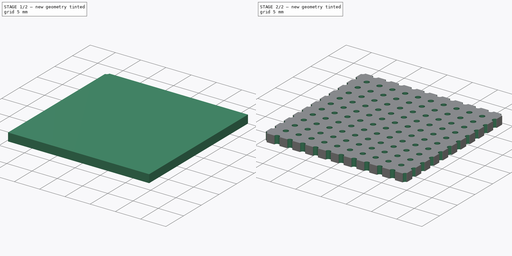
[diagram: build sequence overview — one tinted view per stage of 2, left to right]
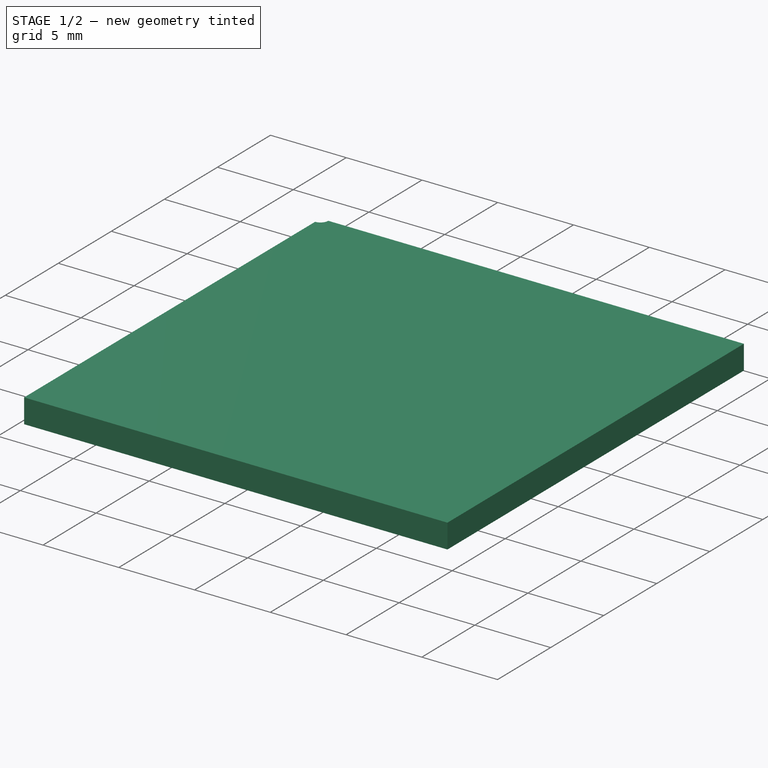
[diagram: stage 1 of 2 — iso view after this stage's code; geometry added in this stage tinted green]
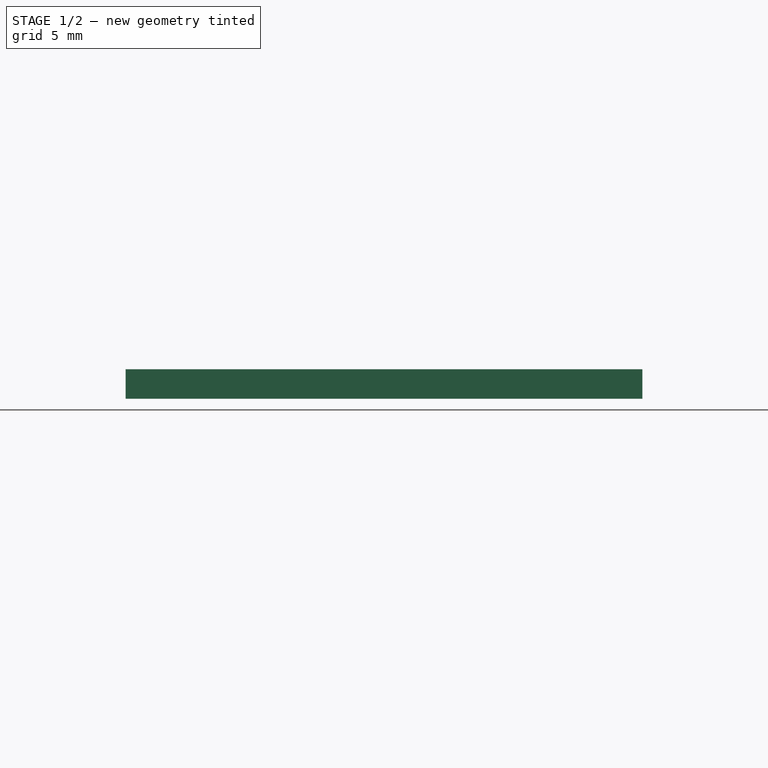
[diagram: stage 1 of 2 — front view after this stage's code; geometry added in this stage tinted green]
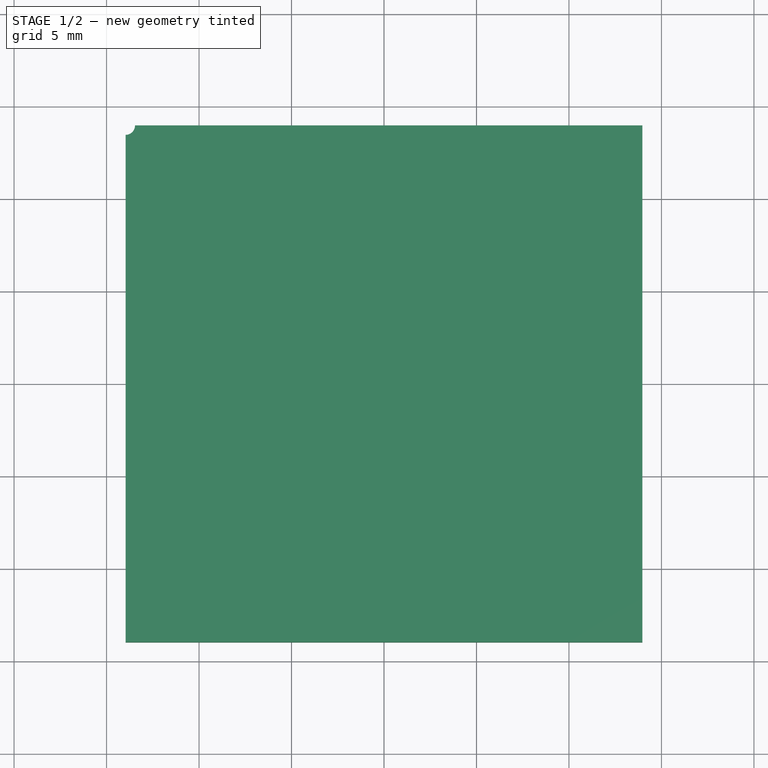
[diagram: stage 1 of 2 — top view after this stage's code; geometry added in this stage tinted green]
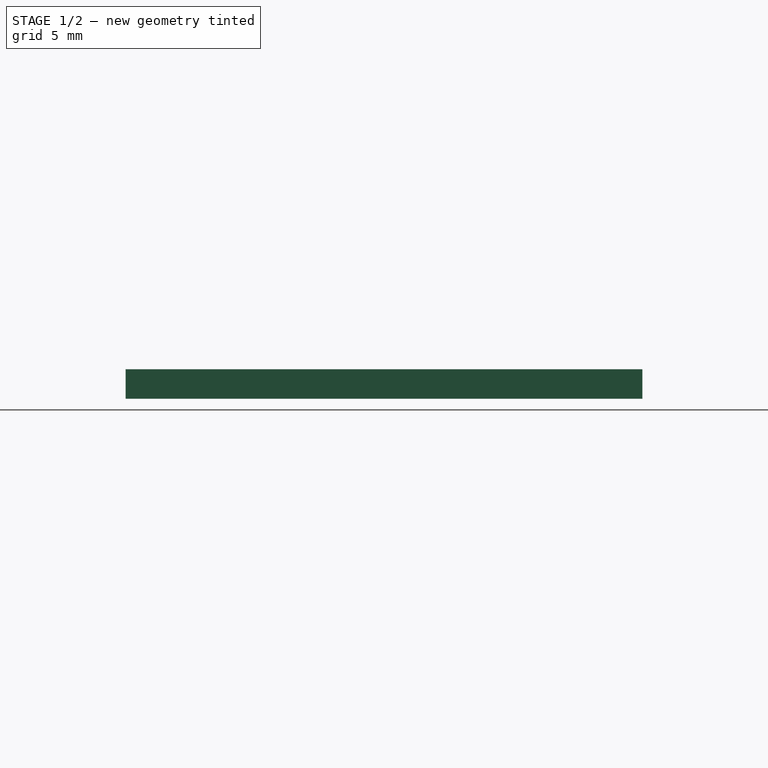
[diagram: stage 1 of 2 — right view after this stage's code; geometry added in this stage tinted green]
FCSTD DOCUMENT  (FreeCAD 0.19R16945 (Git))
Label: Vero Board Generator - Part Board
License: All rights reserved
LicenseURL: http://en.wikipedia.org/wiki/All_rights_reserved
objects: PartDesign::Line×6, Sketcher::SketchObject×2, PartDesign::Body×2, PartDesign::LinearPattern×2, Spreadsheet::Sheet×1, PartDesign::Pad×1, PartDesign::Pocket×1, PartDesign::MultiTransform×1, Part::Compound×1
note: 18 computed .brp shape members not serialized (recipe doc carries the construction recipe); baked Part::Feature solids carry a one-line shape summary decoded from their .brp

FEATURE [Spreadsheet::Sheet] Spreadsheet  label="Data"
  cells = A1=Alias; B1=Value; C1=Description; A2=diameter; B2(diameter)==1.02mm; C2=Hole Diameter; A3=pitch_h; B3(pitch_h)==2.54mm; C3=Hole Pitch Horizontal; A4=pitch_v; B4(pitch_v)==2.54mm; C4=Hole Pitch Vertical; A5=holes_h; B5(holes_h)=10; C5=Hole Number Horizontal; A6=holes_v; B6(holes_v)=10; C6=Hole Number Vertical (Strips); A7=board_thickness; B7(board_thickness)==1.6mm; C7=Board Thickness; A8=cu_thickness; B8(cu_thickness)==35um; C8=Copper Thickness; A9=cu_width; B9(cu_width)==2mm; C9=Copper Track Width
FEATURE [Sketcher::SketchObject] Sketch  label="BoardSketch"
  MapMode = 5
  Support = -> [XY_Plane]
  expr: Constraints[10] = (Data.holes_v + 1) * Data.pitch_v
  expr: Constraints[9] = (Data.holes_h + 1) * Data.pitch_h
  sketch-geometry (4):
    g0: LineSegment StartX=-13.97 StartY=13.97 StartZ=0 EndX=13.97 EndY=13.97 EndZ=0
    g1: LineSegment StartX=13.97 StartY=13.97 StartZ=0 EndX=13.97 EndY=-13.97 EndZ=0
    g2: LineSegment StartX=13.97 StartY=-13.97 StartZ=0 EndX=-13.97 EndY=-13.97 EndZ=0
    g3: LineSegment StartX=-13.97 StartY=-13.97 StartZ=0 EndX=-13.97 EndY=13.97 EndZ=0
  constraints (11):
    c: Coincident(g0,g1)
    c: Coincident(g1,g2)
    c: Coincident(g2,g3)
    c: Coincident(g3,g0)
    c: Horizontal(g0)
    c: Horizontal(g2)
    c: Vertical(g1)
    c: Vertical(g3)
    c: Symmetric(g1,g0,g-1)
    c: DistanceX(g0,g0) = 27.94
    c: DistanceY(g3,g3) = 27.94
FEATURE [PartDesign::Pad] Pad  label="BoardPad"
  Length = 1.6
  Length2 = 100
  Profile = -> Sketch
  Type = 0
  expr: Length = Data.board_thickness
FEATURE [Sketcher::SketchObject] Sketch001  label="EdgeHoleSketch"
  AttachmentOffset = pos=(0,0,1.6) rot=(0,0,1;0rad)
  MapMode = 5
  Placement = pos=(0,0,1.6) rot=(0,0,1;0rad)
  Support = -> [XY_Plane]
  expr: Constraints[2] = (Data.holes_v + 1) * Data.pitch_v / 2
  expr: Constraints[1] = (Data.holes_h + 1) * Data.pitch_h / 2
  expr: Constraints[0] = Data.diameter / 2
  sketch-geometry (1):
    g0: Circle CenterX=-13.97 CenterY=13.97 CenterZ=0 NormalX=0 NormalY=0 NormalZ=1 AngleXU=0 Radius=0.51
  constraints (3):
    c: Radius(g0) = 0.51
    c: DistanceX(g0,g-1) = 13.97
    c: DistanceY(g-1,g0) = 13.97
FEATURE [PartDesign::Pocket] Pocket  label="EdgeHolePocket"
  BaseFeature = -> Pad
  Length = 5
  Length2 = 100
  Profile = -> Sketch001
  Type = 1
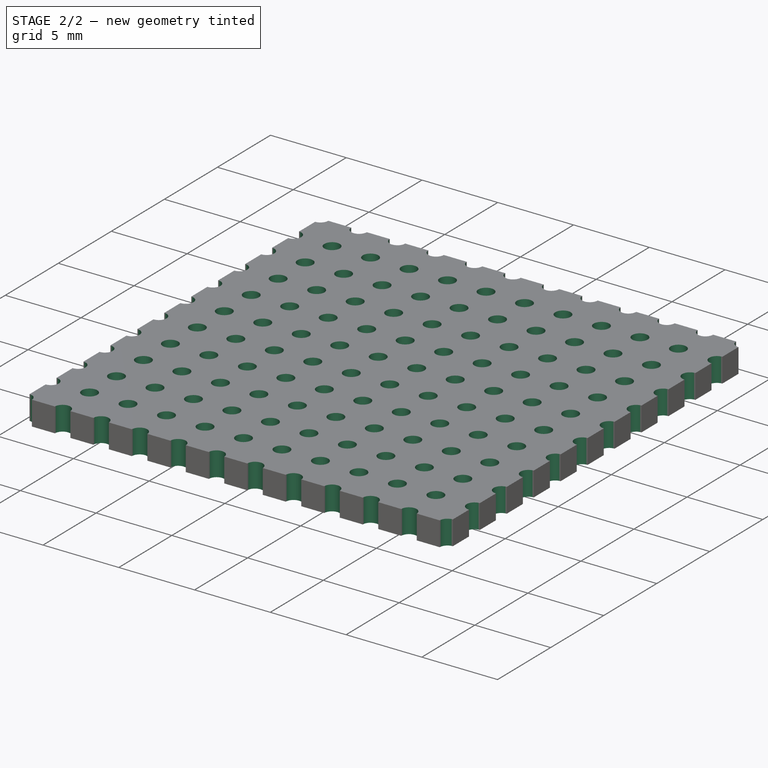
[diagram: stage 2 of 2 — iso view after this stage's code; geometry added in this stage tinted green]
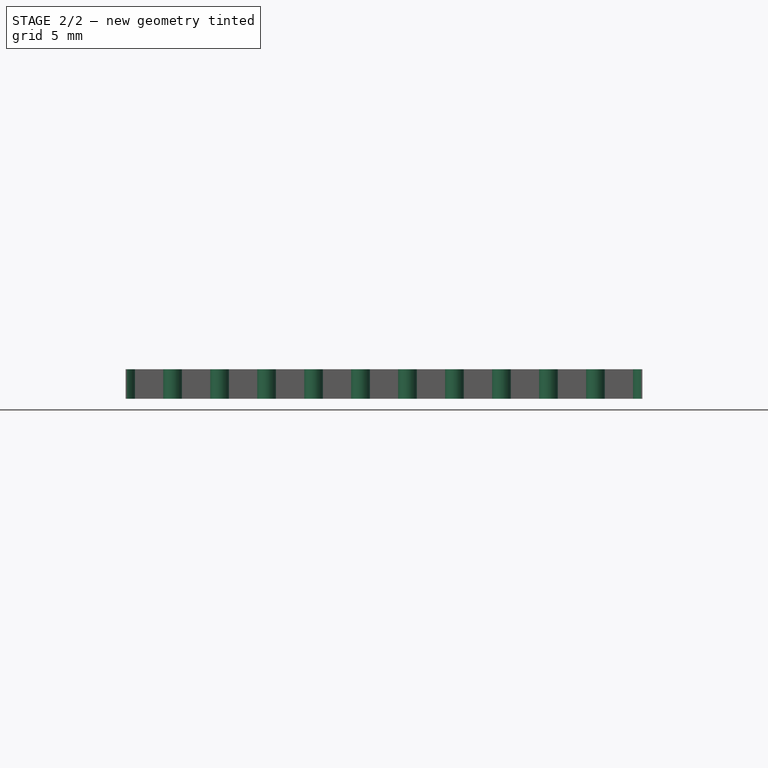
[diagram: stage 2 of 2 — front view after this stage's code; geometry added in this stage tinted green]
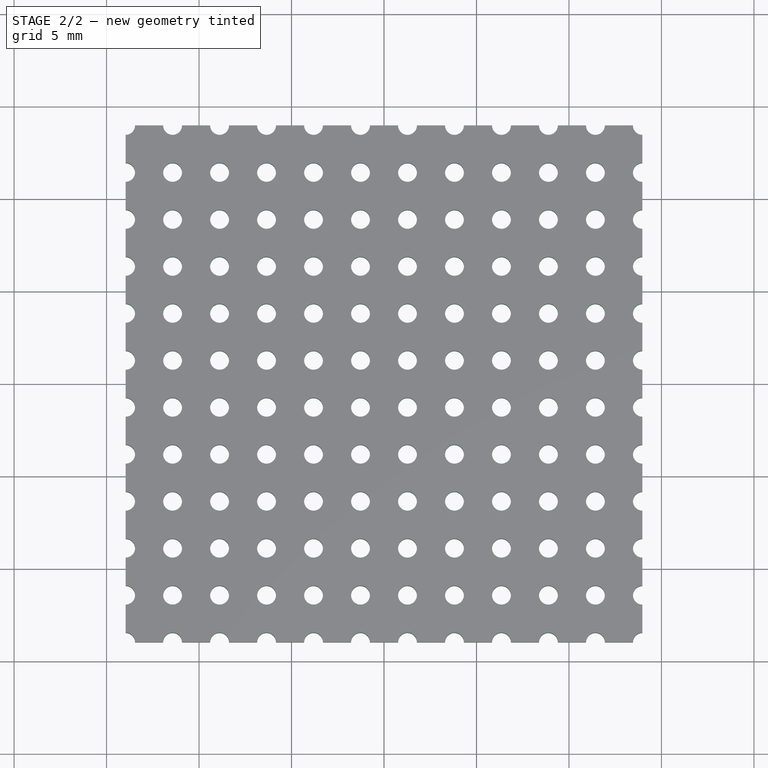
[diagram: stage 2 of 2 — top view after this stage's code; geometry added in this stage tinted green]
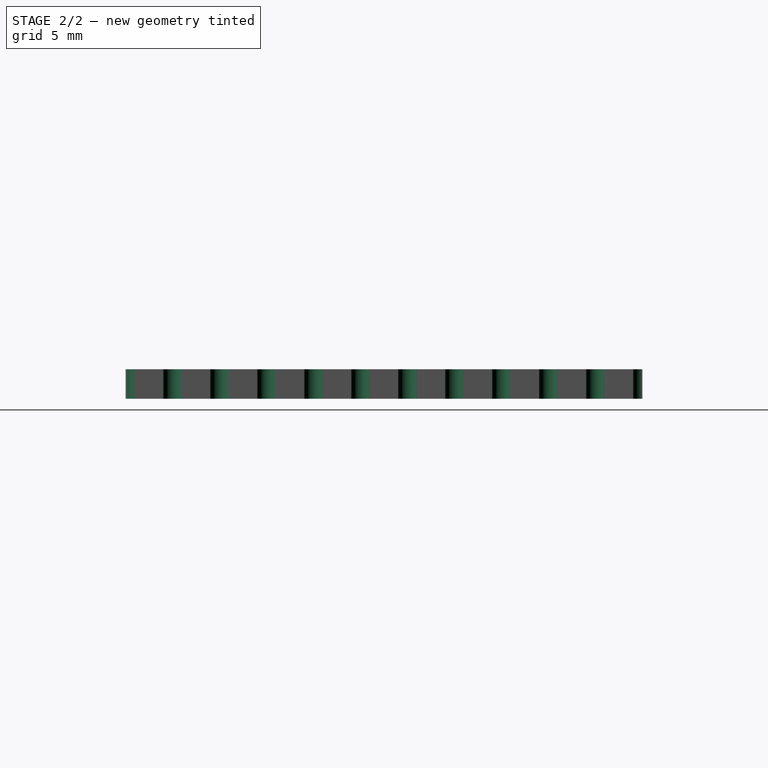
[diagram: stage 2 of 2 — right view after this stage's code; geometry added in this stage tinted green]
FEATURE [PartDesign::Line] DatumLine
  AttacherType = Attacher::AttachEngineLine
  MapMode = 29
  Placement = pos=(0,0,0) rot=(0,0.707107,0.707107;3.14159rad)
  Support = -> [Y_Axis001]
FEATURE [PartDesign::Line] DatumLine001
  AttacherType = Attacher::AttachEngineLine
  MapMode = 29
  Placement = pos=(0,0,0) rot=(0.57735,0.57735,0.57735;2.0944rad)
  Support = -> [X_Axis001]
FEATURE [PartDesign::Line] DatumLine002
  AttacherType = Attacher::AttachEngineLine
  AttachmentOffset = pos=(2.54,0,0) rot=(0,0,1;0rad)
  MapMode = 29
  Placement = pos=(-2.54,3e-16,0) rot=(0,0.707107,0.707107;3.14159rad)
  Support = -> [DatumLine]
  expr: AttachmentOffset.Base.x = Data.pitch_h
FEATURE [PartDesign::Line] DatumLine003
  AttacherType = Attacher::AttachEngineLine
  AttachmentOffset = pos=(2.54,0,0) rot=(0,0,1;0rad)
  MapMode = 29
  Placement = pos=(0,2.54,0) rot=(0.57735,0.57735,0.57735;2.0944rad)
  Support = -> [DatumLine001]
  expr: AttachmentOffset.Base.x = Data.pitch_v
FEATURE [PartDesign::Line] DatumLine004
  AttacherType = Attacher::AttachEngineLine
  AttachmentOffset = pos=(-2.54,0,0) rot=(0,0,1;0rad)
  MapMode = 29
  Placement = pos=(0,-2.54,0) rot=(0.57735,0.57735,0.57735;2.0944rad)
  Support = -> [X_Axis001]
  expr: AttachmentOffset.Base.x = -Data.pitch_v
FEATURE [PartDesign::Line] DatumLine005
  AttacherType = Attacher::AttachEngineLine
  AttachmentOffset = pos=(-2.54,0,0) rot=(0,0,1;0rad)
  MapMode = 29
  Placement = pos=(2.54,-3e-16,0) rot=(0,0.707107,0.707107;3.14159rad)
  Support = -> [Y_Axis001]
  expr: AttachmentOffset.Base.x = -Data.pitch_h
FEATURE [PartDesign::Body] Body001  label="PitchGrid"
  Group = -> [DatumLine,DatumLine001,DatumLine002,DatumLine003,DatumLine004,DatumLine005]
  Origin = -> Origin001
FEATURE [PartDesign::LinearPattern] LinearPattern
  Direction = -> Sketch001 [H_Axis]
  Length = 27.94
  Occurrences = 12
  expr: Occurrences = Data.holes_h + 2
  expr: Length = (Data.holes_h + 1) * Data.pitch_h
FEATURE [PartDesign::LinearPattern] LinearPattern003
  Direction = -> Y_Axis
  Length = 27.94
  Occurrences = 12
  Reversed = true
  expr: Occurrences = Data.holes_v + 2
  expr: Length = (Data.holes_v + 1) * Data.pitch_v
FEATURE [PartDesign::MultiTransform] MultiTransform
  BaseFeature = -> Pocket
  Originals = -> [Pocket]
  Transformations = -> [LinearPattern,LinearPattern003]
FEATURE [PartDesign::Body] Body  label="VeroBoard"
  Group = -> [Sketch,Pad,Sketch001,Pocket,MultiTransform,LinearPattern,LinearPattern003]
  Origin = -> Origin
  Tip = -> MultiTransform
FEATURE [Part::Compound] Compound001  label="CompoundBoard"
  Links = -> [Body]
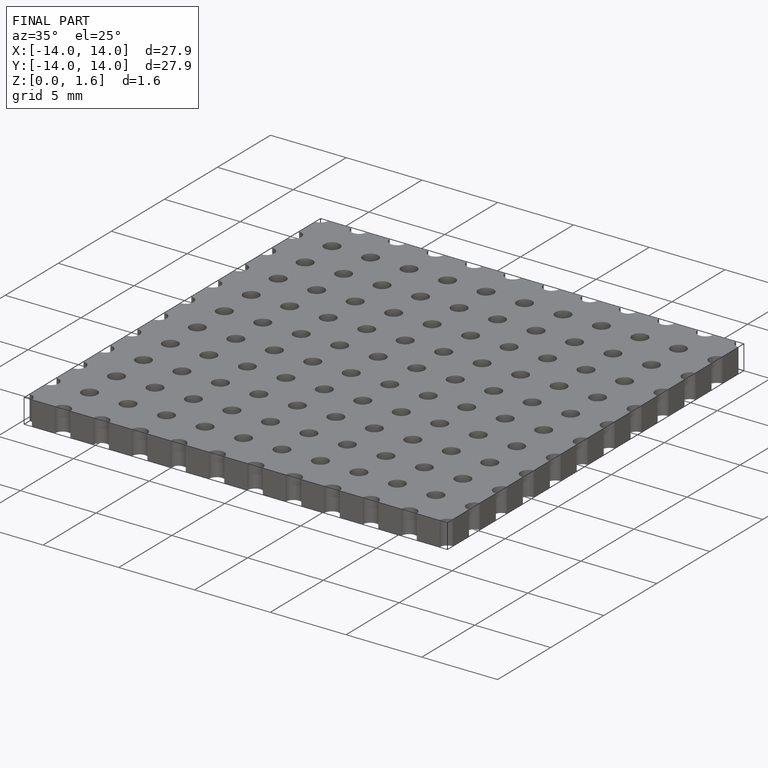
[diagram: finished part — iso view with bounding-box wireframe]
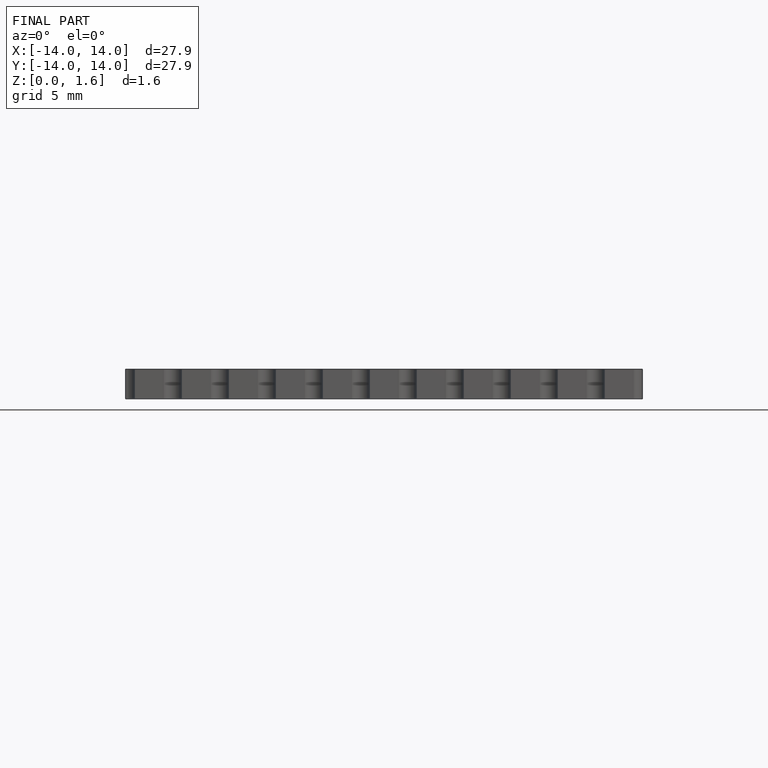
[diagram: finished part — front view with bounding-box wireframe]
